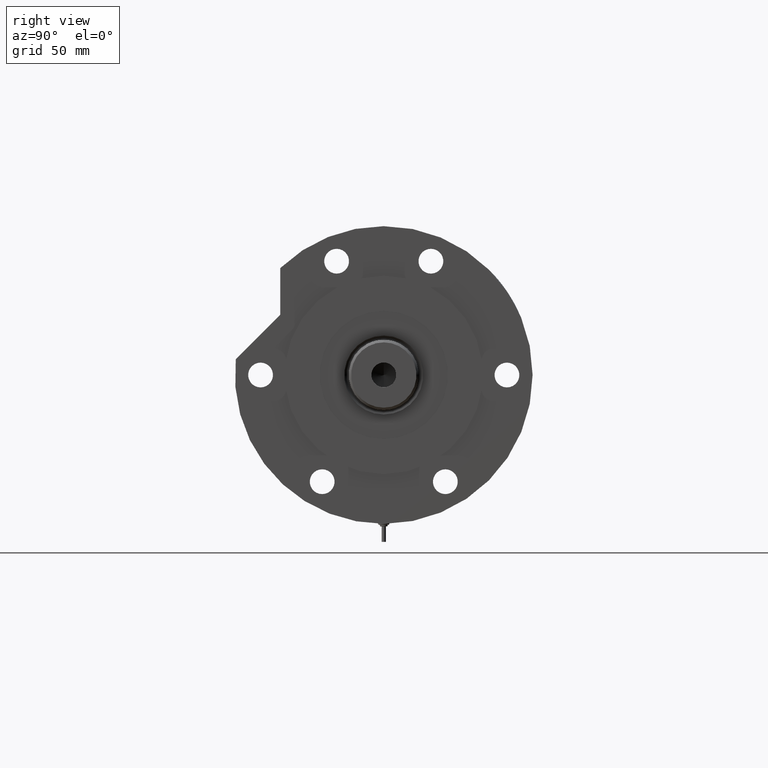
[diagram: clean part render]
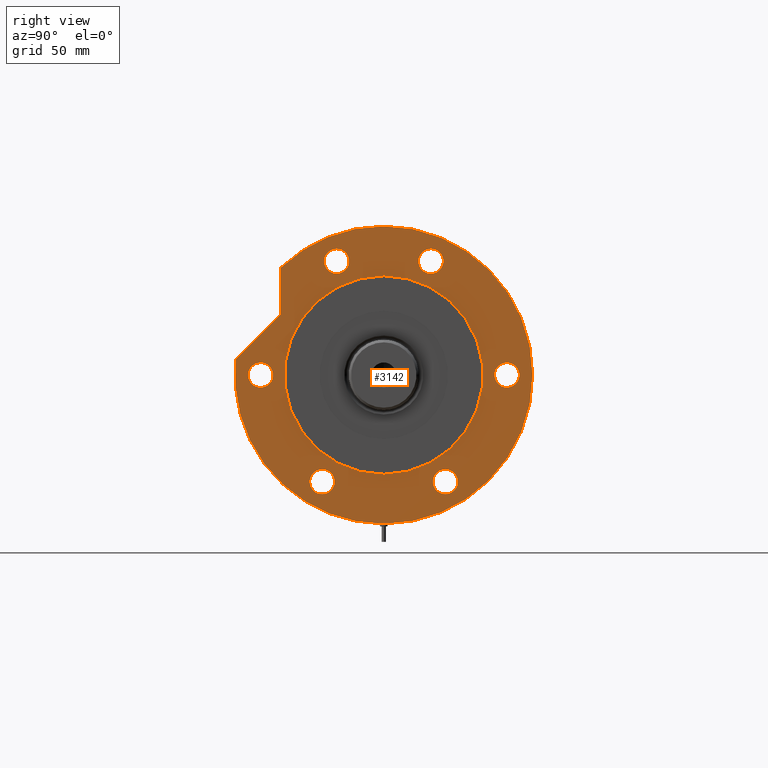
[diagram: same view with one face highlighted and labeled with its STEP entity id]
A machine part, right view. The second image highlights one B-rep face of the part: STEP entity #3142.
In plain terms, the highlighted planar face has unit normal (1, 0, -0).
Its self-contained STEP definition (entity closure, byte-faithful):
#83 = CARTESIAN_POINT ( 'NONE',  ( 0.000000000000000000, 0.000000000000000000, 31.00000000000000000 ) ) ;
#114 = EDGE_CURVE ( 'NONE', #403, #4681, #1721, .T. ) ;
#233 = CARTESIAN_POINT ( 'NONE',  ( 0.000000000000000000, 0.000000000000000000, 31.00000000000000000 ) ) ;
#256 = DIRECTION ( 'NONE',  ( 0.000000000000000000, 0.000000000000000000, 1.000000000000000000 ) ) ;
#301 = DIRECTION ( 'NONE',  ( 0.000000000000000000, 0.000000000000000000, 1.000000000000000000 ) ) ;
#354 = AXIS2_PLACEMENT_3D ( 'NONE', #233, #3858, #4320 ) ;
#403 = VERTEX_POINT ( 'NONE', #2603 ) ;
#406 = CARTESIAN_POINT ( 'NONE',  ( -55.10382907247942796, -36.00000000000027711, 31.00000000000000000 ) ) ;
#495 = AXIS2_PLACEMENT_3D ( 'NONE', #6313, #1080, #5740 ) ;
#497 = CARTESIAN_POINT ( 'NONE',  ( -55.10382907247964823, 35.99999999999985079, 31.00000000000000000 ) ) ;
#508 = CIRCLE ( 'NONE', #1821, 58.00000000000000000 ) ;
#570 = ORIENTED_EDGE ( 'NONE', *, *, #1396, .F. ) ;
#582 = VERTEX_POINT ( 'NONE', #4767 ) ;
#591 = CARTESIAN_POINT ( 'NONE',  ( -62.35382907247942086, -36.00000000000027711, 31.00000000000000000 ) ) ;
#613 = AXIS2_PLACEMENT_3D ( 'NONE', #5486, #256, #4954 ) ;
#627 = VECTOR ( 'NONE', #6483, 999.9999999999998863 ) ;
#630 = AXIS2_PLACEMENT_3D ( 'NONE', #930, #1312, #3241 ) ;
#770 = CARTESIAN_POINT ( 'NONE',  ( 59.26932634081251905, -27.55320713028675073, 31.00000000000000000 ) ) ;
#916 = CARTESIAN_POINT ( 'NONE',  ( 62.54236590573034249, 60.47687547247904405, 31.00000000000000000 ) ) ;
#930 = CARTESIAN_POINT ( 'NONE',  ( 0.000000000000000000, 72.00000000000000000, 31.00000000000000000 ) ) ;
#962 = AXIS2_PLACEMENT_3D ( 'NONE', #83, #1281, #7185 ) ;
#970 = EDGE_CURVE ( 'NONE', #4147, #3995, #2354, .T. ) ;
#1080 = DIRECTION ( 'NONE',  ( 0.000000000000000000, 0.000000000000000000, 1.000000000000000000 ) ) ;
#1131 = CARTESIAN_POINT ( 'NONE',  ( 0.000000000000000000, 60.47687547247904405, 31.00000000000000000 ) ) ;
#1151 = CARTESIAN_POINT ( 'NONE',  ( 47.85462068910451450, 47.85462068910500477, 31.00000000000000000 ) ) ;
#1243 = CIRCLE ( 'NONE', #2348, 7.250000000000001776 ) ;
#1259 = AXIS2_PLACEMENT_3D ( 'NONE', #3468, #6411, #5264 ) ;
#1264 = VERTEX_POINT ( 'NONE', #5710 ) ;
#1281 = DIRECTION ( 'NONE',  ( 0.000000000000000000, 0.000000000000000000, 1.000000000000000000 ) ) ;
#1295 = FACE_BOUND ( 'NONE', #5244, .T. ) ;
#1305 = ORIENTED_EDGE ( 'NONE', *, *, #1950, .F. ) ;
#1312 = DIRECTION ( 'NONE',  ( 0.000000000000000000, 0.000000000000000000, 1.000000000000000000 ) ) ;
#1326 = FACE_BOUND ( 'NONE', #2499, .T. ) ;
#1331 = AXIS2_PLACEMENT_3D ( 'NONE', #591, #2918, #5260 ) ;
#1373 = FACE_BOUND ( 'NONE', #5280, .T. ) ;
#1396 = EDGE_CURVE ( 'NONE', #7549, #2991, #4617, .T. ) ;
#1436 = EDGE_CURVE ( 'NONE', #6829, #582, #4849, .T. ) ;
#1454 = DIRECTION ( 'NONE',  ( 1.000000000000000000, 0.000000000000000000, 0.000000000000000000 ) ) ;
#1455 = DIRECTION ( 'NONE',  ( 1.000000000000000000, 0.000000000000000000, 0.000000000000000000 ) ) ;
#1568 = VECTOR ( 'NONE', #4098, 1000.000000000000000 ) ;
#1569 = EDGE_CURVE ( 'NONE', #4499, #4368, #3948, .T. ) ;
#1596 = CARTESIAN_POINT ( 'NONE',  ( 73.76932634081251194, 27.55320713028675073, 31.00000000000000000 ) ) ;
#1657 = DIRECTION ( 'NONE',  ( 1.000000000000000000, 0.000000000000000000, 0.000000000000000000 ) ) ;
#1679 = ORIENTED_EDGE ( 'NONE', *, *, #3106, .F. ) ;
#1721 = CIRCLE ( 'NONE', #495, 87.00000000000000000 ) ;
#1791 = DIRECTION ( 'NONE',  ( 0.000000000000000000, 0.000000000000000000, 1.000000000000000000 ) ) ;
#1821 = AXIS2_PLACEMENT_3D ( 'NONE', #7408, #2796, #1657 ) ;
#1822 = AXIS2_PLACEMENT_3D ( 'NONE', #5994, #1791, #4766 ) ;
#1829 = FACE_BOUND ( 'NONE', #4696, .T. ) ;
#1879 = EDGE_LOOP ( 'NONE', ( #3397, #4611 ) ) ;
#1934 = CIRCLE ( 'NONE', #4243, 7.249999999999992895 ) ;
#1950 = EDGE_CURVE ( 'NONE', #2015, #4848, #2056, .T. ) ;
#1956 = CARTESIAN_POINT ( 'NONE',  ( 87.00000000000000000, 1.065442715258197209E-14, 31.00000000000000000 ) ) ;
#1965 = VERTEX_POINT ( 'NONE', #2699 ) ;
#2015 = VERTEX_POINT ( 'NONE', #3146 ) ;
#2035 = ORIENTED_EDGE ( 'NONE', *, *, #970, .F. ) ;
#2042 = EDGE_CURVE ( 'NONE', #5839, #2727, #1934, .T. ) ;
#2056 = CIRCLE ( 'NONE', #2913, 7.250000000000001776 ) ;
#2144 = ORIENTED_EDGE ( 'NONE', *, *, #2459, .F. ) ;
#2169 = DIRECTION ( 'NONE',  ( 0.000000000000000000, 0.000000000000000000, 1.000000000000000000 ) ) ;
#2215 = DIRECTION ( 'NONE',  ( 1.000000000000000000, 0.000000000000000000, 0.000000000000000000 ) ) ;
#2260 = CARTESIAN_POINT ( 'NONE',  ( 0.000000000000000000, 0.000000000000000000, 31.00000000000000000 ) ) ;
#2306 = VERTEX_POINT ( 'NONE', #4749 ) ;
#2348 = AXIS2_PLACEMENT_3D ( 'NONE', #4384, #7251, #1455 ) ;
#2354 = CIRCLE ( 'NONE', #1259, 7.250000000000006217 ) ;
#2384 = ORIENTED_EDGE ( 'NONE', *, *, #1436, .F. ) ;
#2386 = CARTESIAN_POINT ( 'NONE',  ( 66.51932634081252615, 27.55320713028675073, 31.00000000000000000 ) ) ;
#2459 = EDGE_CURVE ( 'NONE', #2306, #4491, #6567, .T. ) ;
#2499 = EDGE_LOOP ( 'NONE', ( #5135, #6623 ) ) ;
#2589 = DIRECTION ( 'NONE',  ( 0.000000000000000000, 0.000000000000000000, 1.000000000000000000 ) ) ;
#2602 = CARTESIAN_POINT ( 'NONE',  ( -62.35382907247942086, -36.00000000000027711, 31.00000000000000000 ) ) ;
#2603 = CARTESIAN_POINT ( 'NONE',  ( -87.00000000000000000, 0.000000000000000000, 31.00000000000000000 ) ) ;
#2614 = EDGE_CURVE ( 'NONE', #4681, #4368, #6947, .T. ) ;
#2699 = CARTESIAN_POINT ( 'NONE',  ( 9.196694222441541555, 86.51254715576759224, 31.00000000000000000 ) ) ;
#2727 = VERTEX_POINT ( 'NONE', #770 ) ;
#2796 = DIRECTION ( 'NONE',  ( 0.000000000000000000, 0.000000000000000000, 1.000000000000000000 ) ) ;
#2824 = CIRCLE ( 'NONE', #5753, 7.249999999999992895 ) ;
#2869 = CARTESIAN_POINT ( 'NONE',  ( 59.26932634081251905, 27.55320713028675073, 31.00000000000000000 ) ) ;
#2884 = EDGE_CURVE ( 'NONE', #4491, #2306, #6085, .T. ) ;
#2913 = AXIS2_PLACEMENT_3D ( 'NONE', #3074, #2969, #5303 ) ;
#2918 = DIRECTION ( 'NONE',  ( 0.000000000000000000, 0.000000000000000000, 1.000000000000000000 ) ) ;
#2969 = DIRECTION ( 'NONE',  ( 0.000000000000000000, 0.000000000000000000, 1.000000000000000000 ) ) ;
#2991 = VERTEX_POINT ( 'NONE', #2869 ) ;
#2997 = ORIENTED_EDGE ( 'NONE', *, *, #114, .T. ) ;
#3074 = CARTESIAN_POINT ( 'NONE',  ( 0.000000000000000000, -72.00000000000000000, 31.00000000000000000 ) ) ;
#3086 = CARTESIAN_POINT ( 'NONE',  ( 66.51932634081252615, -27.55320713028675073, 31.00000000000000000 ) ) ;
#3106 = EDGE_CURVE ( 'NONE', #3995, #4147, #4025, .T. ) ;
#3142 = ADVANCED_FACE ( 'NONE', ( #7054, #1373, #1326, #1829, #1295, #6490, #6595, #6452 ), #3614, .T. ) ;
#3146 = CARTESIAN_POINT ( 'NONE',  ( -7.250000000000001776, -72.00000000000000000, 31.00000000000000000 ) ) ;
#3241 = DIRECTION ( 'NONE',  ( 1.000000000000000000, 0.000000000000000000, 0.000000000000000000 ) ) ;
#3356 = EDGE_CURVE ( 'NONE', #4848, #2015, #7186, .T. ) ;
#3393 = CARTESIAN_POINT ( 'NONE',  ( -62.35382907247965534, 35.99999999999985079, 31.00000000000000000 ) ) ;
#3397 = ORIENTED_EDGE ( 'NONE', *, *, #7025, .F. ) ;
#3435 = DIRECTION ( 'NONE',  ( 1.000000000000000000, 0.000000000000000000, 0.000000000000000000 ) ) ;
#3468 = CARTESIAN_POINT ( 'NONE',  ( -62.35382907247965534, 35.99999999999985079, 31.00000000000000000 ) ) ;
#3614 = PLANE ( 'NONE',  #1822 ) ;
#3790 = AXIS2_PLACEMENT_3D ( 'NONE', #5270, #6380, #3435 ) ;
#3821 = ORIENTED_EDGE ( 'NONE', *, *, #1569, .F. ) ;
#3828 = EDGE_LOOP ( 'NONE', ( #3821, #6531, #5788, #2997, #6519 ) ) ;
#3858 = DIRECTION ( 'NONE',  ( 0.000000000000000000, 0.000000000000000000, 1.000000000000000000 ) ) ;
#3948 = LINE ( 'NONE', #1131, #1568 ) ;
#3981 = DIRECTION ( 'NONE',  ( 1.000000000000000000, 0.000000000000000000, 0.000000000000000000 ) ) ;
#3995 = VERTEX_POINT ( 'NONE', #497 ) ;
#4003 = AXIS2_PLACEMENT_3D ( 'NONE', #2386, #4715, #4570 ) ;
#4025 = CIRCLE ( 'NONE', #5249, 7.250000000000006217 ) ;
#4098 = DIRECTION ( 'NONE',  ( 1.000000000000000000, 0.000000000000000000, -0.000000000000000000 ) ) ;
#4147 = VERTEX_POINT ( 'NONE', #5231 ) ;
#4174 = ORIENTED_EDGE ( 'NONE', *, *, #3356, .F. ) ;
#4243 = AXIS2_PLACEMENT_3D ( 'NONE', #6704, #2589, #6778 ) ;
#4320 = DIRECTION ( 'NONE',  ( 1.000000000000000000, 0.000000000000000000, 0.000000000000000000 ) ) ;
#4368 = VERTEX_POINT ( 'NONE', #916 ) ;
#4384 = CARTESIAN_POINT ( 'NONE',  ( 0.000000000000000000, 72.00000000000000000, 31.00000000000000000 ) ) ;
#4491 = VERTEX_POINT ( 'NONE', #406 ) ;
#4499 = VERTEX_POINT ( 'NONE', #5065 ) ;
#4570 = DIRECTION ( 'NONE',  ( 1.000000000000000000, 0.000000000000000000, 0.000000000000000000 ) ) ;
#4606 = ORIENTED_EDGE ( 'NONE', *, *, #6095, .F. ) ;
#4611 = ORIENTED_EDGE ( 'NONE', *, *, #6619, .F. ) ;
#4617 = CIRCLE ( 'NONE', #4003, 7.249999999999992895 ) ;
#4625 = DIRECTION ( 'NONE',  ( 0.000000000000000000, 0.000000000000000000, 1.000000000000000000 ) ) ;
#4671 = EDGE_CURVE ( 'NONE', #1965, #403, #6118, .T. ) ;
#4681 = VERTEX_POINT ( 'NONE', #1956 ) ;
#4696 = EDGE_LOOP ( 'NONE', ( #1305, #4174 ) ) ;
#4715 = DIRECTION ( 'NONE',  ( 0.000000000000000000, 0.000000000000000000, 1.000000000000000000 ) ) ;
#4740 = EDGE_CURVE ( 'NONE', #582, #6829, #508, .T. ) ;
#4749 = CARTESIAN_POINT ( 'NONE',  ( -69.60382907247941375, -36.00000000000027711, 31.00000000000000000 ) ) ;
#4766 = DIRECTION ( 'NONE',  ( 1.000000000000000000, 0.000000000000000000, -0.000000000000000000 ) ) ;
#4767 = CARTESIAN_POINT ( 'NONE',  ( -58.00000000000000000, 0.000000000000000000, 31.00000000000000000 ) ) ;
#4848 = VERTEX_POINT ( 'NONE', #6964 ) ;
#4849 = CIRCLE ( 'NONE', #962, 58.00000000000000000 ) ;
#4954 = DIRECTION ( 'NONE',  ( 1.000000000000000000, 0.000000000000000000, 0.000000000000000000 ) ) ;
#4991 = AXIS2_PLACEMENT_3D ( 'NONE', #2602, #2169, #7330 ) ;
#5027 = ORIENTED_EDGE ( 'NONE', *, *, #2884, .F. ) ;
#5065 = CARTESIAN_POINT ( 'NONE',  ( 35.23236590573035443, 60.47687547247904405, 31.00000000000000000 ) ) ;
#5135 = ORIENTED_EDGE ( 'NONE', *, *, #5795, .F. ) ;
#5231 = CARTESIAN_POINT ( 'NONE',  ( -69.60382907247965534, 35.99999999999985079, 31.00000000000000000 ) ) ;
#5244 = EDGE_LOOP ( 'NONE', ( #2144, #5027 ) ) ;
#5249 = AXIS2_PLACEMENT_3D ( 'NONE', #3393, #4625, #2215 ) ;
#5260 = DIRECTION ( 'NONE',  ( 1.000000000000000000, 0.000000000000000000, 0.000000000000000000 ) ) ;
#5264 = DIRECTION ( 'NONE',  ( 1.000000000000000000, 0.000000000000000000, 0.000000000000000000 ) ) ;
#5266 = CIRCLE ( 'NONE', #3790, 7.249999999999992895 ) ;
#5270 = CARTESIAN_POINT ( 'NONE',  ( 66.51932634081252615, 27.55320713028675073, 31.00000000000000000 ) ) ;
#5280 = EDGE_LOOP ( 'NONE', ( #4606, #570 ) ) ;
#5303 = DIRECTION ( 'NONE',  ( 1.000000000000000000, 0.000000000000000000, 0.000000000000000000 ) ) ;
#5382 = CARTESIAN_POINT ( 'NONE',  ( 73.76932634081251194, -27.55320713028675073, 31.00000000000000000 ) ) ;
#5486 = CARTESIAN_POINT ( 'NONE',  ( 0.000000000000000000, -72.00000000000000000, 31.00000000000000000 ) ) ;
#5703 = ORIENTED_EDGE ( 'NONE', *, *, #4740, .F. ) ;
#5710 = CARTESIAN_POINT ( 'NONE',  ( 7.250000000000001776, 72.00000000000000000, 31.00000000000000000 ) ) ;
#5740 = DIRECTION ( 'NONE',  ( 1.000000000000000000, 0.000000000000000000, 0.000000000000000000 ) ) ;
#5753 = AXIS2_PLACEMENT_3D ( 'NONE', #3086, #301, #1454 ) ;
#5782 = EDGE_LOOP ( 'NONE', ( #2035, #1679 ) ) ;
#5788 = ORIENTED_EDGE ( 'NONE', *, *, #4671, .T. ) ;
#5795 = EDGE_CURVE ( 'NONE', #2727, #5839, #2824, .T. ) ;
#5839 = VERTEX_POINT ( 'NONE', #5382 ) ;
#5914 = LINE ( 'NONE', #1151, #627 ) ;
#5994 = CARTESIAN_POINT ( 'NONE',  ( 0.000000000000000000, 0.000000000000000000, 31.00000000000000000 ) ) ;
#6085 = CIRCLE ( 'NONE', #4991, 7.249999999999992895 ) ;
#6095 = EDGE_CURVE ( 'NONE', #2991, #7549, #5266, .T. ) ;
#6118 = CIRCLE ( 'NONE', #354, 87.00000000000000000 ) ;
#6124 = EDGE_CURVE ( 'NONE', #1965, #4499, #5914, .T. ) ;
#6313 = CARTESIAN_POINT ( 'NONE',  ( 0.000000000000000000, 0.000000000000000000, 31.00000000000000000 ) ) ;
#6380 = DIRECTION ( 'NONE',  ( 0.000000000000000000, 0.000000000000000000, 1.000000000000000000 ) ) ;
#6411 = DIRECTION ( 'NONE',  ( 0.000000000000000000, 0.000000000000000000, 1.000000000000000000 ) ) ;
#6412 = VERTEX_POINT ( 'NONE', #7041 ) ;
#6452 = FACE_BOUND ( 'NONE', #7486, .T. ) ;
#6455 = AXIS2_PLACEMENT_3D ( 'NONE', #2260, #7451, #3981 ) ;
#6483 = DIRECTION ( 'NONE',  ( 0.7071067811865511255, -0.7071067811865440200, 0.000000000000000000 ) ) ;
#6490 = FACE_BOUND ( 'NONE', #5782, .T. ) ;
#6519 = ORIENTED_EDGE ( 'NONE', *, *, #2614, .T. ) ;
#6531 = ORIENTED_EDGE ( 'NONE', *, *, #6124, .F. ) ;
#6567 = CIRCLE ( 'NONE', #1331, 7.249999999999992895 ) ;
#6595 = FACE_OUTER_BOUND ( 'NONE', #3828, .T. ) ;
#6619 = EDGE_CURVE ( 'NONE', #1264, #6412, #7213, .T. ) ;
#6623 = ORIENTED_EDGE ( 'NONE', *, *, #2042, .F. ) ;
#6704 = CARTESIAN_POINT ( 'NONE',  ( 66.51932634081252615, -27.55320713028675073, 31.00000000000000000 ) ) ;
#6778 = DIRECTION ( 'NONE',  ( 1.000000000000000000, 0.000000000000000000, 0.000000000000000000 ) ) ;
#6829 = VERTEX_POINT ( 'NONE', #6960 ) ;
#6947 = CIRCLE ( 'NONE', #6455, 87.00000000000000000 ) ;
#6960 = CARTESIAN_POINT ( 'NONE',  ( 58.00000000000000000, 7.102951435054648059E-15, 31.00000000000000000 ) ) ;
#6964 = CARTESIAN_POINT ( 'NONE',  ( 7.250000000000001776, -72.00000000000000000, 31.00000000000000000 ) ) ;
#7025 = EDGE_CURVE ( 'NONE', #6412, #1264, #1243, .T. ) ;
#7041 = CARTESIAN_POINT ( 'NONE',  ( -7.250000000000001776, 72.00000000000000000, 31.00000000000000000 ) ) ;
#7054 = FACE_BOUND ( 'NONE', #1879, .T. ) ;
#7185 = DIRECTION ( 'NONE',  ( 1.000000000000000000, 0.000000000000000000, 0.000000000000000000 ) ) ;
#7186 = CIRCLE ( 'NONE', #613, 7.250000000000001776 ) ;
#7213 = CIRCLE ( 'NONE', #630, 7.250000000000001776 ) ;
#7251 = DIRECTION ( 'NONE',  ( 0.000000000000000000, 0.000000000000000000, 1.000000000000000000 ) ) ;
#7330 = DIRECTION ( 'NONE',  ( 1.000000000000000000, 0.000000000000000000, 0.000000000000000000 ) ) ;
#7408 = CARTESIAN_POINT ( 'NONE',  ( 0.000000000000000000, 0.000000000000000000, 31.00000000000000000 ) ) ;
#7451 = DIRECTION ( 'NONE',  ( 0.000000000000000000, 0.000000000000000000, 1.000000000000000000 ) ) ;
#7486 = EDGE_LOOP ( 'NONE', ( #5703, #2384 ) ) ;
#7549 = VERTEX_POINT ( 'NONE', #1596 ) ;